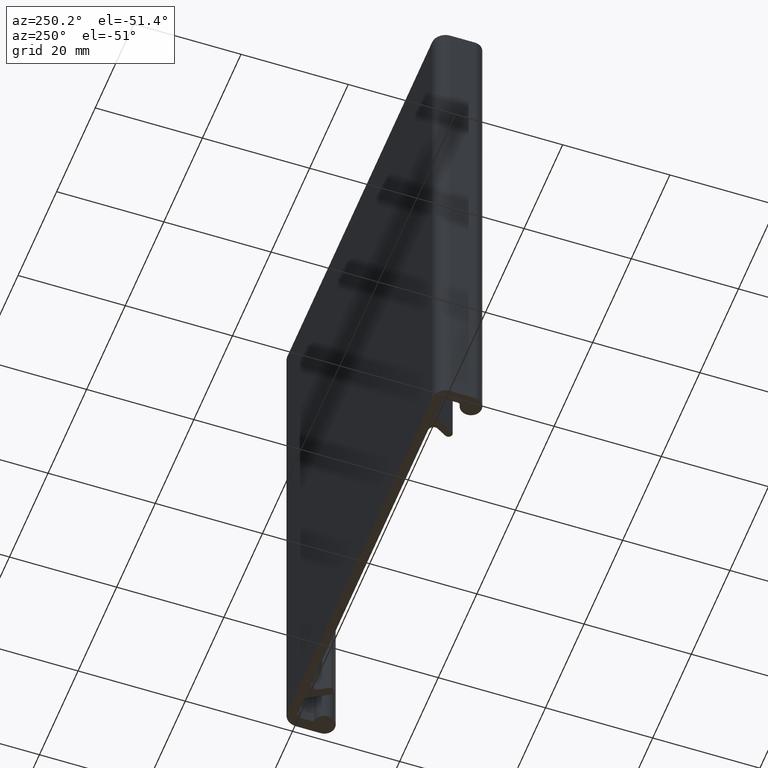
[diagram: clean part render]
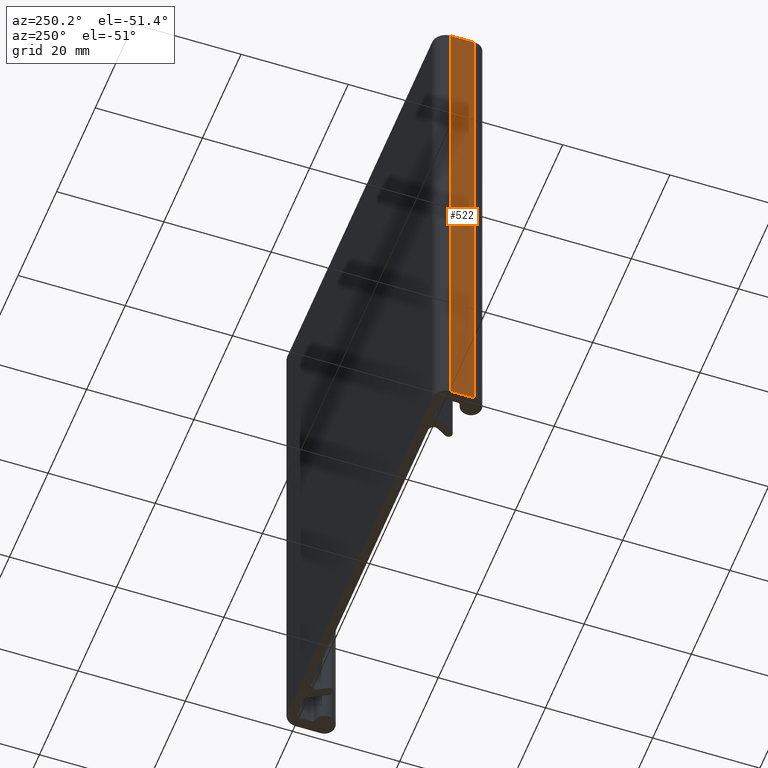
[diagram: same view with one face highlighted and labeled with its STEP entity id]
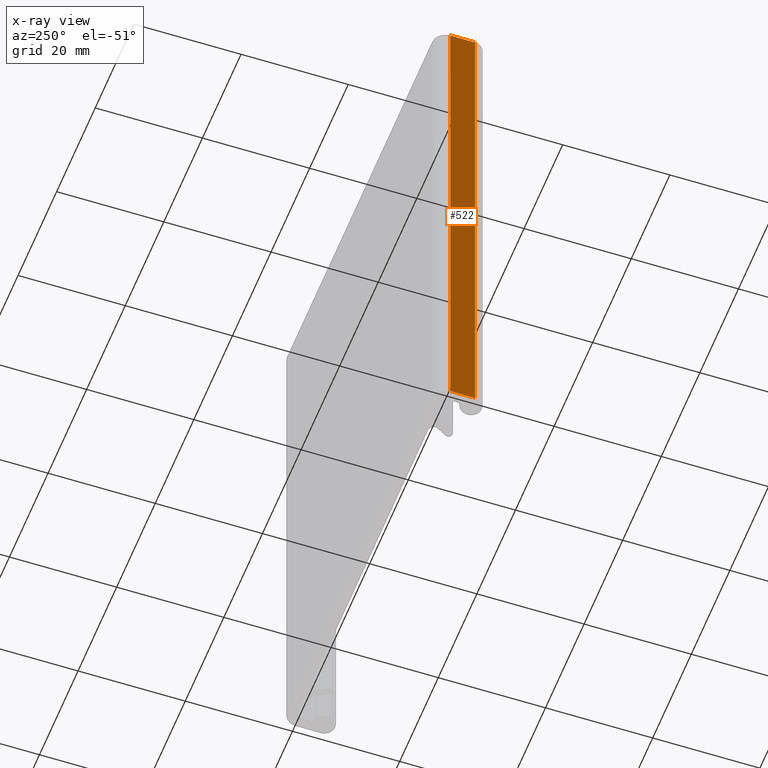
[diagram: x-ray of the same camera — body ghosted, the highlighted face saturated]
A machine part, auxiliary view. The second image highlights one B-rep face of the part: STEP entity #522.
The next image is the same camera in x-ray: the body ghosted, the highlighted face saturated — about 0% of this face is hidden behind the body in this view.
In plain terms, the highlighted planar face has unit normal (-1, 0, 0).
Its self-contained STEP definition (entity closure, byte-faithful):
#66=FACE_OUTER_BOUND('',#94,.T.);
#94=EDGE_LOOP('',(#379,#380,#381,#382));
#130=LINE('',#841,#180);
#131=LINE('',#844,#181);
#132=LINE('',#846,#182);
#133=LINE('',#847,#183);
#180=VECTOR('',#677,10.);
#181=VECTOR('',#680,10.);
#182=VECTOR('',#681,10.);
#183=VECTOR('',#682,10.);
#231=VERTEX_POINT('',#837);
#232=VERTEX_POINT('',#839);
#233=VERTEX_POINT('',#843);
#234=VERTEX_POINT('',#845);
#292=EDGE_CURVE('',#231,#232,#130,.T.);
#293=EDGE_CURVE('',#233,#231,#131,.T.);
#294=EDGE_CURVE('',#234,#232,#132,.T.);
#295=EDGE_CURVE('',#233,#234,#133,.T.);
#379=ORIENTED_EDGE('',*,*,#293,.T.);
#380=ORIENTED_EDGE('',*,*,#292,.T.);
#381=ORIENTED_EDGE('',*,*,#294,.F.);
#382=ORIENTED_EDGE('',*,*,#295,.F.);
#503=PLANE('',#583);
#522=ADVANCED_FACE('',(#66),#503,.T.);
#583=AXIS2_PLACEMENT_3D('',#842,#678,#679);
#677=DIRECTION('',(0.,0.,1.));
#678=DIRECTION('center_axis',(-1.,1.724420985217E-13,0.));
#679=DIRECTION('ref_axis',(-1.724420985217E-13,-1.,0.));
#680=DIRECTION('',(-1.724420985217E-13,-1.,0.));
#681=DIRECTION('',(-1.724420985217E-13,-1.,0.));
#682=DIRECTION('',(0.,0.,1.));
#837=CARTESIAN_POINT('',(-39.8273502691901,-5.28402443666474,0.));
#839=CARTESIAN_POINT('',(-39.8273502691901,-5.28402443666474,100.));
#841=CARTESIAN_POINT('',(-39.8273502691901,-5.28402443666474,0.));
#842=CARTESIAN_POINT('Origin',(-39.8273502691893,-0.700000000000651,0.));
#843=CARTESIAN_POINT('',(-39.8273502691893,-0.700000000000651,0.));
#844=CARTESIAN_POINT('',(-39.8273502691893,-0.700000000000651,0.));
#845=CARTESIAN_POINT('',(-39.8273502691893,-0.700000000000651,100.));
#846=CARTESIAN_POINT('',(-39.8273502691893,-0.700000000000651,100.));
#847=CARTESIAN_POINT('',(-39.8273502691893,-0.700000000000651,0.));